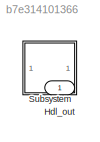
MODEL slx_b7e314101366
KIND model
CONFIG AbsTol = auto
CONFIG EnableMultiTasking = off
CONFIG FixedStep = auto
CONFIG MaxStep = auto
CONFIG MinStep = auto
CONFIG RelTol = 1e-3
CONFIG SampleTimeConstraint = Unconstrained
CONFIG SolverName = VariableStepAuto
CONFIG StartTime = 0.0
CONFIG StopTime = 10.0
BLOCK [Outport] Hdl_out
  OutDataTypeStr = uint8
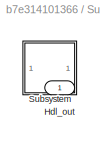
BLOCK [SubSystem] Subsystem
BLOCK [Outport] Subsystem/Hdl_out
  OutDataTypeStr = uint8
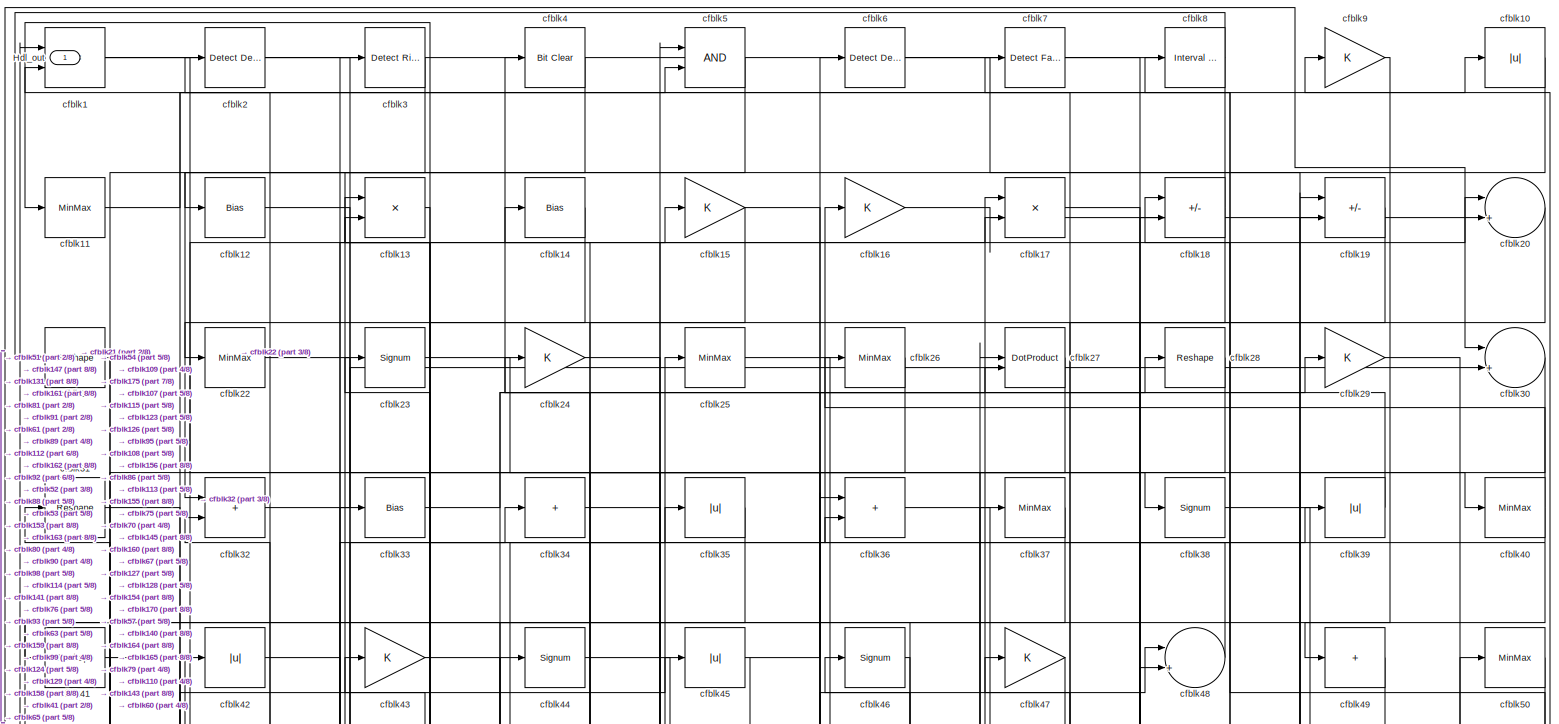
[diagram: Subsystem/Subsystem - part 1/8, full width, top band]
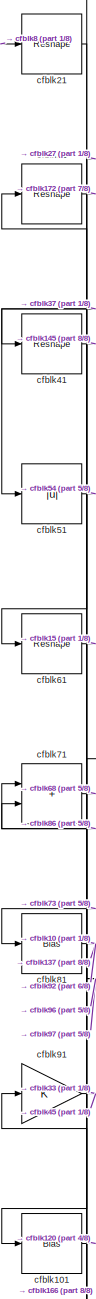
[diagram: Subsystem/Subsystem - part 2/8, middle left region]
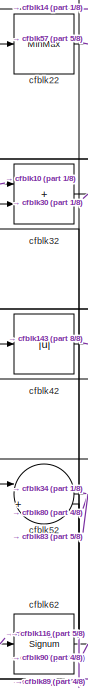
[diagram: Subsystem/Subsystem - part 3/8, top left region]
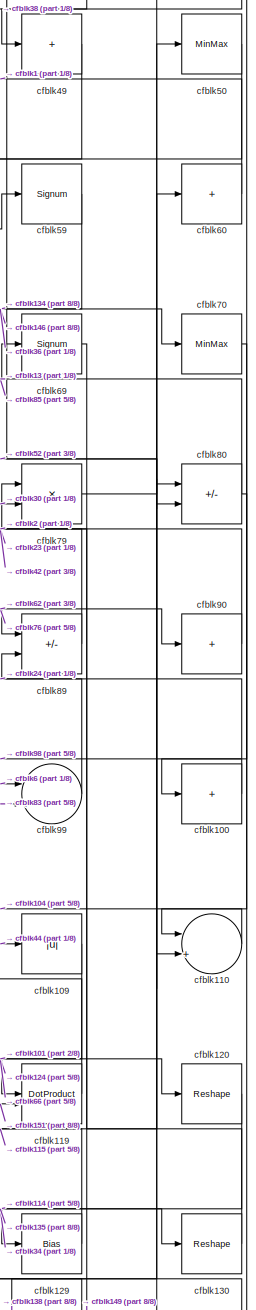
[diagram: Subsystem/Subsystem - part 4/8, middle right region]
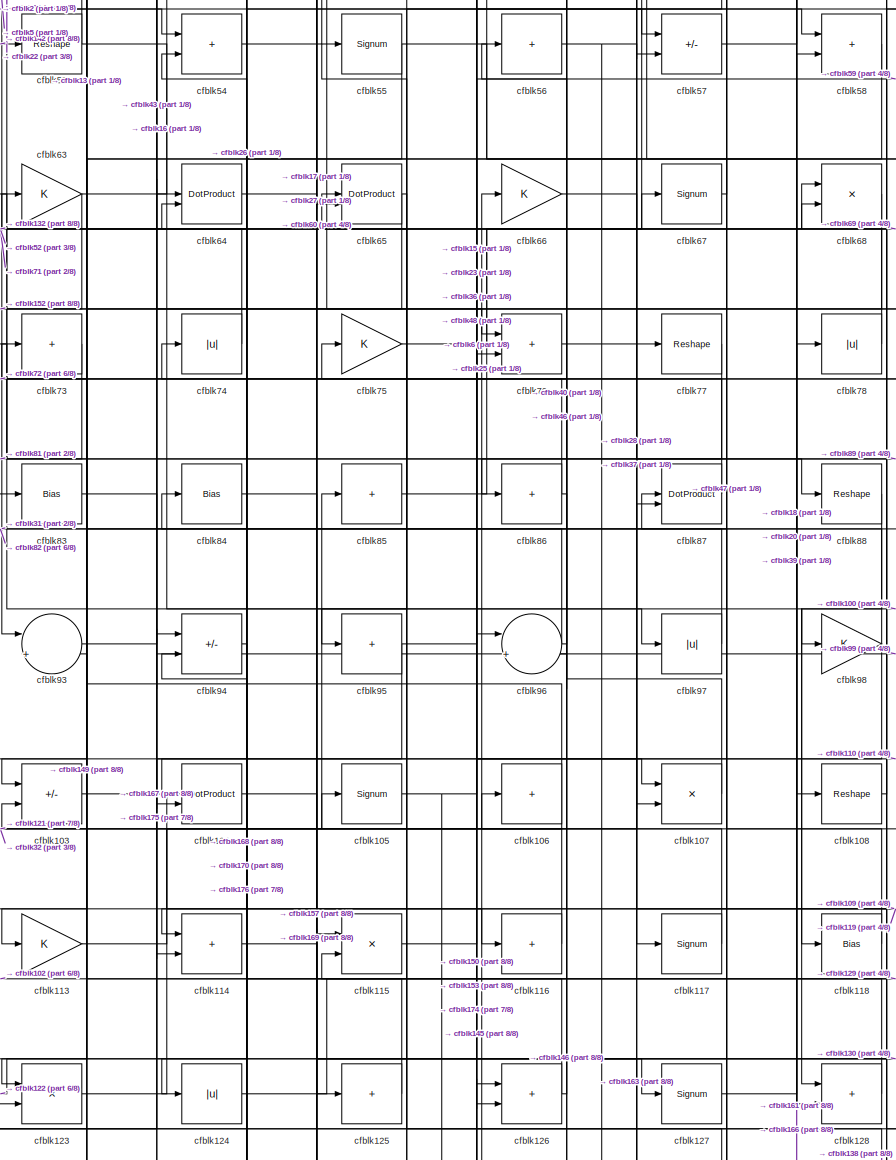
[diagram: Subsystem/Subsystem - part 5/8, central region]
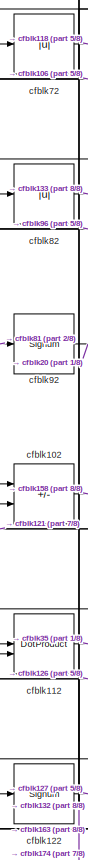
[diagram: Subsystem/Subsystem - part 6/8, middle left region]
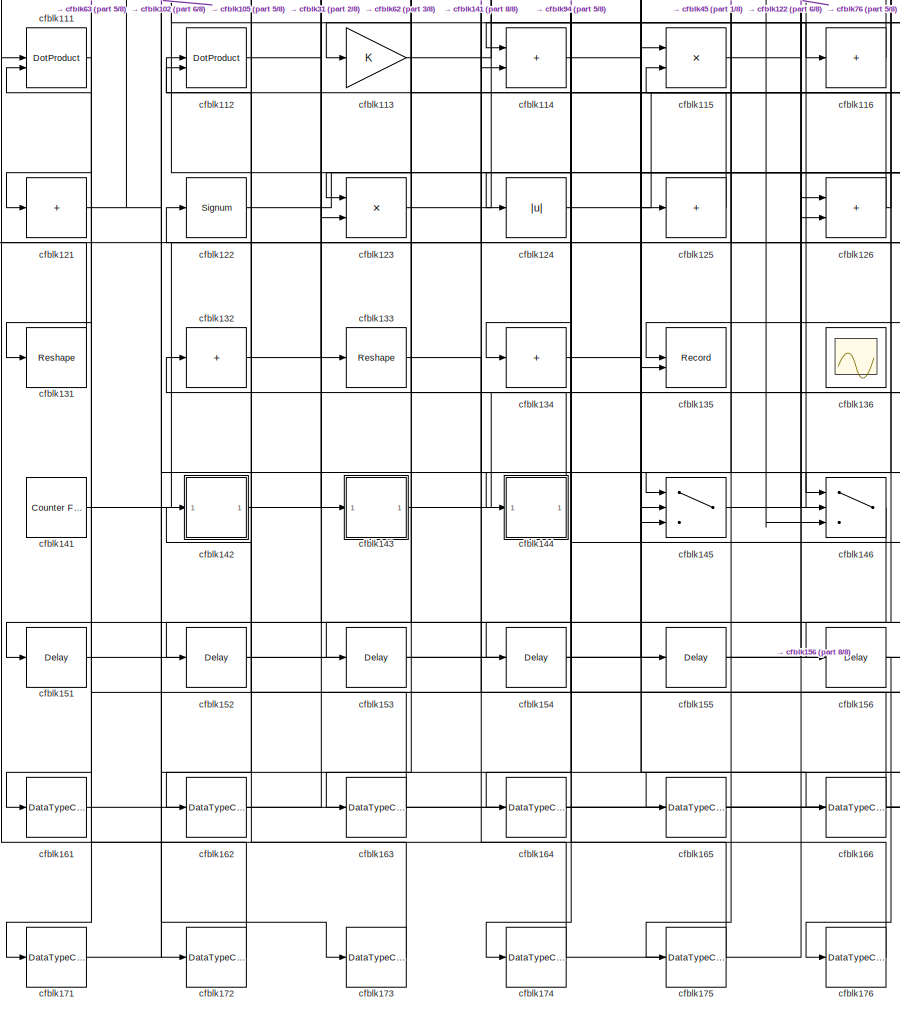
[diagram: Subsystem/Subsystem - part 7/8, bottom left region]
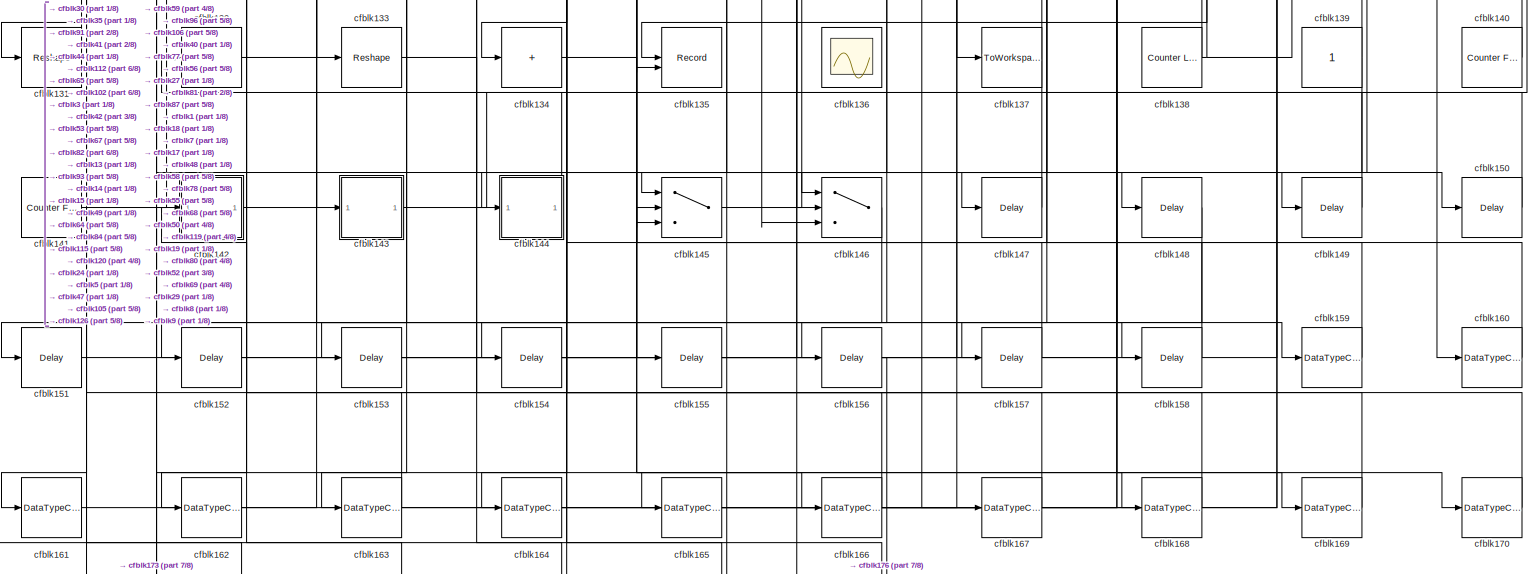
[diagram: Subsystem/Subsystem - part 8/8, full width, bottom band]
BLOCK [SubSystem] Subsystem/Subsystem
BLOCK [Outport] Subsystem/Subsystem/Hdl_out
  OutDataTypeStr = uint8
BLOCK [RelationalOperator] Subsystem/Subsystem/cfblk1
  InputSameDT = off
  Operator = <=
  OutDataTypeStr = boolean
BLOCK [Abs] Subsystem/Subsystem/cfblk10
  OutDataTypeStr = uint8
  SaturateOnIntegerOverflow = off
BLOCK [Sum] Subsystem/Subsystem/cfblk100
  IconShape = rectangular
  Inputs = +
  OutDataTypeStr = uint8
BLOCK [Bias] Subsystem/Subsystem/cfblk101
  Bias = 0.0
  SaturateOnIntegerOverflow = off
BLOCK [Sum] Subsystem/Subsystem/cfblk102
  IconShape = rectangular
  Inputs = +-
  OutDataTypeStr = uint8
BLOCK [Sum] Subsystem/Subsystem/cfblk103
  IconShape = rectangular
  Inputs = +-
  OutDataTypeStr = uint8
BLOCK [DotProduct] Subsystem/Subsystem/cfblk104
  OutDataTypeStr = uint8
BLOCK [Signum] Subsystem/Subsystem/cfblk105
BLOCK [Sum] Subsystem/Subsystem/cfblk106
  IconShape = rectangular
  Inputs = +
  OutDataTypeStr = uint8
BLOCK [Product] Subsystem/Subsystem/cfblk107
  Inputs = */
  OutDataTypeStr = uint8
  RndMeth = Zero
  SaturateOnIntegerOverflow = on
BLOCK [Reshape] Subsystem/Subsystem/cfblk108
BLOCK [Abs] Subsystem/Subsystem/cfblk109
  OutDataTypeStr = uint8
  SaturateOnIntegerOverflow = off
BLOCK [MinMax] Subsystem/Subsystem/cfblk11
  OutDataTypeStr = uint8
BLOCK [Sum] Subsystem/Subsystem/cfblk110
  Inputs = |++
  OutDataTypeStr = uint8
BLOCK [DotProduct] Subsystem/Subsystem/cfblk111
  OutDataTypeStr = uint8
BLOCK [DotProduct] Subsystem/Subsystem/cfblk112
  OutDataTypeStr = uint8
BLOCK [Gain] Subsystem/Subsystem/cfblk113
  OutDataTypeStr = uint8
BLOCK [Sum] Subsystem/Subsystem/cfblk114
  IconShape = rectangular
  OutDataTypeStr = uint8
BLOCK [Product] Subsystem/Subsystem/cfblk115
  Inputs = */
  OutDataTypeStr = uint8
  RndMeth = Zero
  SaturateOnIntegerOverflow = on
BLOCK [Sum] Subsystem/Subsystem/cfblk116
  IconShape = rectangular
  Inputs = +
  OutDataTypeStr = uint8
BLOCK [Signum] Subsystem/Subsystem/cfblk117
BLOCK [Bias] Subsystem/Subsystem/cfblk118
  Bias = 0.0
  SaturateOnIntegerOverflow = off
BLOCK [DotProduct] Subsystem/Subsystem/cfblk119
  OutDataTypeStr = uint8
BLOCK [Bias] Subsystem/Subsystem/cfblk12
  Bias = 0.0
  SaturateOnIntegerOverflow = off
BLOCK [Reshape] Subsystem/Subsystem/cfblk120
BLOCK [Sum] Subsystem/Subsystem/cfblk121
  IconShape = rectangular
  Inputs = +
  OutDataTypeStr = uint8
BLOCK [Signum] Subsystem/Subsystem/cfblk122
BLOCK [Product] Subsystem/Subsystem/cfblk123
  Inputs = */
  OutDataTypeStr = uint8
  RndMeth = Zero
  SaturateOnIntegerOverflow = on
BLOCK [Abs] Subsystem/Subsystem/cfblk124
  OutDataTypeStr = uint8
  SaturateOnIntegerOverflow = off
BLOCK [Sum] Subsystem/Subsystem/cfblk125
  IconShape = rectangular
  Inputs = +
  OutDataTypeStr = uint8
BLOCK [Sum] Subsystem/Subsystem/cfblk126
  IconShape = rectangular
  OutDataTypeStr = uint8
BLOCK [Signum] Subsystem/Subsystem/cfblk127
BLOCK [Sum] Subsystem/Subsystem/cfblk128
  IconShape = rectangular
  OutDataTypeStr = uint8
BLOCK [Bias] Subsystem/Subsystem/cfblk129
  Bias = 0.0
  SaturateOnIntegerOverflow = off
BLOCK [Product] Subsystem/Subsystem/cfblk13
  Inputs = */
  OutDataTypeStr = uint8
  RndMeth = Zero
  SaturateOnIntegerOverflow = on
BLOCK [Reshape] Subsystem/Subsystem/cfblk130
BLOCK [Reshape] Subsystem/Subsystem/cfblk131
BLOCK [Sum] Subsystem/Subsystem/cfblk132
  IconShape = rectangular
  Inputs = +
  OutDataTypeStr = uint8
BLOCK [Reshape] Subsystem/Subsystem/cfblk133
BLOCK [Sum] Subsystem/Subsystem/cfblk134
  IconShape = rectangular
  Inputs = +
  OutDataTypeStr = uint8
BLOCK [Record] Subsystem/Subsystem/cfblk135
  CompatibilityTag = XY
  FileSettingsInternal = {"entries":[{"content":{"excelSettings":{"content":{},"type":"Streamout.ExcelSettings"}},"type":"Streamout.FileSettingStorage","uuid":""}],"packageUris":["http:\/\/schema.mathworks.com\/mf0\/streamout_blocks\/R2020a"],"version":"1.0"}
  Layout = [1 1]
  SignalsInternal = {"entries":[{"content":{"signals":[{"content":{"blockPath":[],"dimensions":[1],"domain":"","lineColor":"#a2142f","plots":[1],"port":1,"signalID":14830,"signalName":"cfblk50"},"type":"RecordBlkView.Signal","uuid":""},{"content":{"blockPath":[],"dimensions":[1],"domain":"","lineColor":"#139fff","plots":[1],"port":2,"signalID":14833,"signalName":"cfblk120"},"type":"RecordBlkView.Signal","uuid":""}]},...<+143ch>
  VisualizationBindings = {"xyplotplugin":{"info":[{"series":[{"bindingParametersList":[{"parameter":"X-Axis","signalID":14830,"signalName":"cfblk50"},{"parameter":"Y-Axis","signalID":14833,"signalName":"cfblk120"}],"seriesID":8380}],"subplotID":1}]}}
  st = -1
BLOCK [Scope] Subsystem/Subsystem/cfblk136
  Floating = on
  NumInputPorts = 1
  ScopeSpecificationString = Simulink.scopes.TimeScopeBlockCfg('CurrentConfiguration', extmgr.ConfigurationSet(extmgr.Configuration('Core','General UI',true,'FigureColor',[0.156862745098039 0.156862745098039 0.156862745098039]),extmgr.Configuration('Core','Source UI',true),extmgr.Configuration('Sources','WiredSimulink',true,'DataLoggingSaveFormat','StructureWithTime','DataLoggingLimitDataPoints',true,'DataLoggingDecimation','...<+2674ch>
BLOCK [ToWorkspace] Subsystem/Subsystem/cfblk137
  MaxDataPoints = inf
  SampleTime = -1
  SaveFormat = Timeseries
  VariableName = simout
BLOCK [Reference] Subsystem/Subsystem/cfblk138  REF=hdlsllib/Sources/Counter
Limited
  SourceBlock = hdlsllib/Sources/Counter\nLimited
  SourceType = Counter Limited
BLOCK [Constant] Subsystem/Subsystem/cfblk139
  OutDataTypeStr = uint8
  SampleTime = -1
BLOCK [Bias] Subsystem/Subsystem/cfblk14
  Bias = 0.0
  SaturateOnIntegerOverflow = off
BLOCK [Reference] Subsystem/Subsystem/cfblk140  REF=hdlsllib/Sources/Counter
Free-Running
  SourceBlock = hdlsllib/Sources/Counter\nFree-Running
  SourceType = Counter Free-Running
BLOCK [Reference] Subsystem/Subsystem/cfblk141  REF=hdlsllib/Sources/Counter
Free-Running
  SourceBlock = hdlsllib/Sources/Counter\nFree-Running
  SourceType = Counter Free-Running
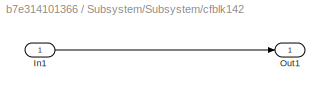
BLOCK [SubSystem] Subsystem/Subsystem/cfblk142
  LibrarySourceBlock = hdlsllib/Ports &\nSubsystems/Subsystem
BLOCK [Inport] Subsystem/Subsystem/cfblk142/In1
BLOCK [Outport] Subsystem/Subsystem/cfblk142/Out1
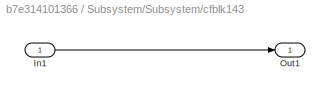
BLOCK [SubSystem] Subsystem/Subsystem/cfblk143
  LibrarySourceBlock = hdlsllib/Ports &\nSubsystems/Subsystem
BLOCK [Inport] Subsystem/Subsystem/cfblk143/In1
BLOCK [Outport] Subsystem/Subsystem/cfblk143/Out1
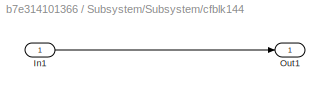
BLOCK [SubSystem] Subsystem/Subsystem/cfblk144
  LibrarySourceBlock = hdlsllib/Ports &\nSubsystems/Subsystem
BLOCK [Inport] Subsystem/Subsystem/cfblk144/In1
BLOCK [Outport] Subsystem/Subsystem/cfblk144/Out1
BLOCK [Switch] Subsystem/Subsystem/cfblk145
  InputSameDT = off
  OutDataTypeStr = uint8
  SaturateOnIntegerOverflow = off
BLOCK [Switch] Subsystem/Subsystem/cfblk146
  InputSameDT = off
  OutDataTypeStr = uint8
  SaturateOnIntegerOverflow = off
BLOCK [Delay] Subsystem/Subsystem/cfblk147
  InputPortMap = u0
  SampleTime = 1
BLOCK [Delay] Subsystem/Subsystem/cfblk148
  InputPortMap = u0
  SampleTime = 1
BLOCK [Delay] Subsystem/Subsystem/cfblk149
  InputPortMap = u0
  SampleTime = 1
BLOCK [Gain] Subsystem/Subsystem/cfblk15
  OutDataTypeStr = uint8
BLOCK [Delay] Subsystem/Subsystem/cfblk150
  InputPortMap = u0
  SampleTime = 1
BLOCK [Delay] Subsystem/Subsystem/cfblk151
  InputPortMap = u0
  SampleTime = 1
BLOCK [Delay] Subsystem/Subsystem/cfblk152
  InputPortMap = u0
  SampleTime = 1
BLOCK [Delay] Subsystem/Subsystem/cfblk153
  InputPortMap = u0
  SampleTime = 1
BLOCK [Delay] Subsystem/Subsystem/cfblk154
  InputPortMap = u0
  SampleTime = 1
BLOCK [Delay] Subsystem/Subsystem/cfblk155
  InputPortMap = u0
  SampleTime = 1
BLOCK [Delay] Subsystem/Subsystem/cfblk156
  InputPortMap = u0
  SampleTime = 1
BLOCK [Delay] Subsystem/Subsystem/cfblk157
  InputPortMap = u0
  SampleTime = 1
BLOCK [Delay] Subsystem/Subsystem/cfblk158
  InputPortMap = u0
  SampleTime = 1
BLOCK [DataTypeConversion] Subsystem/Subsystem/cfblk159
  OutDataTypeStr = uint8
  RndMeth = Floor
  SaturateOnIntegerOverflow = off
BLOCK [Gain] Subsystem/Subsystem/cfblk16
  OutDataTypeStr = uint8
BLOCK [DataTypeConversion] Subsystem/Subsystem/cfblk160
  OutDataTypeStr = uint8
  RndMeth = Floor
  SaturateOnIntegerOverflow = off
BLOCK [DataTypeConversion] Subsystem/Subsystem/cfblk161
  OutDataTypeStr = uint8
  RndMeth = Floor
  SaturateOnIntegerOverflow = off
BLOCK [DataTypeConversion] Subsystem/Subsystem/cfblk162
  OutDataTypeStr = uint8
  RndMeth = Floor
  SaturateOnIntegerOverflow = off
BLOCK [DataTypeConversion] Subsystem/Subsystem/cfblk163
  OutDataTypeStr = uint8
  RndMeth = Floor
  SaturateOnIntegerOverflow = off
BLOCK [DataTypeConversion] Subsystem/Subsystem/cfblk164
  OutDataTypeStr = uint8
  RndMeth = Floor
  SaturateOnIntegerOverflow = off
BLOCK [DataTypeConversion] Subsystem/Subsystem/cfblk165
  OutDataTypeStr = uint8
  RndMeth = Floor
  SaturateOnIntegerOverflow = off
BLOCK [DataTypeConversion] Subsystem/Subsystem/cfblk166
  OutDataTypeStr = uint8
  RndMeth = Floor
  SaturateOnIntegerOverflow = off
BLOCK [DataTypeConversion] Subsystem/Subsystem/cfblk167
  OutDataTypeStr = uint8
  RndMeth = Floor
  SaturateOnIntegerOverflow = off
BLOCK [DataTypeConversion] Subsystem/Subsystem/cfblk168
  OutDataTypeStr = uint8
  RndMeth = Floor
  SaturateOnIntegerOverflow = off
BLOCK [DataTypeConversion] Subsystem/Subsystem/cfblk169
  OutDataTypeStr = uint8
  RndMeth = Floor
  SaturateOnIntegerOverflow = off
BLOCK [Product] Subsystem/Subsystem/cfblk17
  Inputs = */
  OutDataTypeStr = uint8
  RndMeth = Zero
  SaturateOnIntegerOverflow = on
BLOCK [DataTypeConversion] Subsystem/Subsystem/cfblk170
  OutDataTypeStr = uint8
  RndMeth = Floor
  SaturateOnIntegerOverflow = off
BLOCK [DataTypeConversion] Subsystem/Subsystem/cfblk171
  OutDataTypeStr = uint8
  RndMeth = Floor
  SaturateOnIntegerOverflow = off
BLOCK [DataTypeConversion] Subsystem/Subsystem/cfblk172
  OutDataTypeStr = uint8
  RndMeth = Floor
  SaturateOnIntegerOverflow = off
BLOCK [DataTypeConversion] Subsystem/Subsystem/cfblk173
  OutDataTypeStr = uint8
  RndMeth = Floor
  SaturateOnIntegerOverflow = off
BLOCK [DataTypeConversion] Subsystem/Subsystem/cfblk174
  OutDataTypeStr = uint8
  RndMeth = Floor
  SaturateOnIntegerOverflow = off
BLOCK [DataTypeConversion] Subsystem/Subsystem/cfblk175
  OutDataTypeStr = uint8
  RndMeth = Floor
  SaturateOnIntegerOverflow = off
BLOCK [DataTypeConversion] Subsystem/Subsystem/cfblk176
  OutDataTypeStr = uint8
  RndMeth = Floor
  SaturateOnIntegerOverflow = off
BLOCK [Sum] Subsystem/Subsystem/cfblk18
  IconShape = rectangular
  Inputs = +-
  OutDataTypeStr = uint8
BLOCK [Sum] Subsystem/Subsystem/cfblk19
  IconShape = rectangular
  Inputs = +-
  OutDataTypeStr = uint8
BLOCK [Reference] Subsystem/Subsystem/cfblk2  REF=simulink/Logic and Bit
Operations/Detect
Decrease
  LibrarySourceBlock = hdlsllib/Logic and Bit\nOperations/Detect\nDecrease
  SourceBlock = simulink/Logic and Bit\nOperations/Detect\nDecrease
  SourceType = Detect Decrease
BLOCK [Sum] Subsystem/Subsystem/cfblk20
  Inputs = |++
  OutDataTypeStr = uint8
BLOCK [Reshape] Subsystem/Subsystem/cfblk21
BLOCK [MinMax] Subsystem/Subsystem/cfblk22
  OutDataTypeStr = uint8
BLOCK [Signum] Subsystem/Subsystem/cfblk23
BLOCK [Gain] Subsystem/Subsystem/cfblk24
  OutDataTypeStr = uint8
BLOCK [MinMax] Subsystem/Subsystem/cfblk25
  OutDataTypeStr = uint8
BLOCK [MinMax] Subsystem/Subsystem/cfblk26
  OutDataTypeStr = uint8
BLOCK [DotProduct] Subsystem/Subsystem/cfblk27
  OutDataTypeStr = uint8
BLOCK [Reshape] Subsystem/Subsystem/cfblk28
BLOCK [Gain] Subsystem/Subsystem/cfblk29
  OutDataTypeStr = uint8
BLOCK [Reference] Subsystem/Subsystem/cfblk3  REF=hdlsllib/Logic and Bit
Operations/Detect Rise
Positive
  SourceBlock = hdlsllib/Logic and Bit\nOperations/Detect Rise\nPositive
  SourceType = Detect Rise Positive
BLOCK [Sum] Subsystem/Subsystem/cfblk30
  Inputs = |++
  OutDataTypeStr = uint8
BLOCK [Reshape] Subsystem/Subsystem/cfblk31
BLOCK [Sum] Subsystem/Subsystem/cfblk32
  IconShape = rectangular
  OutDataTypeStr = uint8
BLOCK [Bias] Subsystem/Subsystem/cfblk33
  Bias = 0.0
  SaturateOnIntegerOverflow = off
BLOCK [Sum] Subsystem/Subsystem/cfblk34
  IconShape = rectangular
  Inputs = +
  OutDataTypeStr = uint8
BLOCK [Abs] Subsystem/Subsystem/cfblk35
  OutDataTypeStr = uint8
  SaturateOnIntegerOverflow = off
BLOCK [Sum] Subsystem/Subsystem/cfblk36
  IconShape = rectangular
  OutDataTypeStr = uint8
BLOCK [MinMax] Subsystem/Subsystem/cfblk37
  OutDataTypeStr = uint8
BLOCK [Signum] Subsystem/Subsystem/cfblk38
BLOCK [Abs] Subsystem/Subsystem/cfblk39
  OutDataTypeStr = uint8
  SaturateOnIntegerOverflow = off
BLOCK [Reference] Subsystem/Subsystem/cfblk4  REF=simulink/Logic and Bit
Operations/Bit Clear
  LibrarySourceBlock = hdlsllib/Logic and Bit\nOperations/Bit Clear
  SourceBlock = simulink/Logic and Bit\nOperations/Bit Clear
  SourceType = Bit Clear
BLOCK [MinMax] Subsystem/Subsystem/cfblk40
  OutDataTypeStr = uint8
BLOCK [Reshape] Subsystem/Subsystem/cfblk41
BLOCK [Abs] Subsystem/Subsystem/cfblk42
  OutDataTypeStr = uint8
  SaturateOnIntegerOverflow = off
BLOCK [Gain] Subsystem/Subsystem/cfblk43
  OutDataTypeStr = uint8
BLOCK [Signum] Subsystem/Subsystem/cfblk44
BLOCK [Abs] Subsystem/Subsystem/cfblk45
  OutDataTypeStr = uint8
  SaturateOnIntegerOverflow = off
BLOCK [Signum] Subsystem/Subsystem/cfblk46
BLOCK [Gain] Subsystem/Subsystem/cfblk47
  OutDataTypeStr = uint8
BLOCK [Sum] Subsystem/Subsystem/cfblk48
  Inputs = |++
  OutDataTypeStr = uint8
BLOCK [Sum] Subsystem/Subsystem/cfblk49
  IconShape = rectangular
  Inputs = +
  OutDataTypeStr = uint8
BLOCK [Logic] Subsystem/Subsystem/cfblk5
  AllPortsSameDT = off
  OutDataTypeStr = boolean
BLOCK [MinMax] Subsystem/Subsystem/cfblk50
  OutDataTypeStr = uint8
BLOCK [Abs] Subsystem/Subsystem/cfblk51
  OutDataTypeStr = uint8
  SaturateOnIntegerOverflow = off
BLOCK [Sum] Subsystem/Subsystem/cfblk52
  Inputs = |++
  OutDataTypeStr = uint8
BLOCK [Reshape] Subsystem/Subsystem/cfblk53
BLOCK [Sum] Subsystem/Subsystem/cfblk54
  IconShape = rectangular
  OutDataTypeStr = uint8
BLOCK [Signum] Subsystem/Subsystem/cfblk55
BLOCK [Sum] Subsystem/Subsystem/cfblk56
  IconShape = rectangular
  Inputs = +
  OutDataTypeStr = uint8
BLOCK [Sum] Subsystem/Subsystem/cfblk57
  IconShape = rectangular
  Inputs = +-
  OutDataTypeStr = uint8
BLOCK [Sum] Subsystem/Subsystem/cfblk58
  IconShape = rectangular
  OutDataTypeStr = uint8
BLOCK [Signum] Subsystem/Subsystem/cfblk59
BLOCK [Reference] Subsystem/Subsystem/cfblk6  REF=simulink/Logic and Bit
Operations/Detect
Decrease
  LibrarySourceBlock = hdlsllib/Logic and Bit\nOperations/Detect\nDecrease
  SourceBlock = simulink/Logic and Bit\nOperations/Detect\nDecrease
  SourceType = Detect Decrease
BLOCK [Sum] Subsystem/Subsystem/cfblk60
  IconShape = rectangular
  Inputs = +
  OutDataTypeStr = uint8
BLOCK [Reshape] Subsystem/Subsystem/cfblk61
BLOCK [Signum] Subsystem/Subsystem/cfblk62
BLOCK [Gain] Subsystem/Subsystem/cfblk63
  OutDataTypeStr = uint8
BLOCK [DotProduct] Subsystem/Subsystem/cfblk64
  OutDataTypeStr = uint8
BLOCK [DotProduct] Subsystem/Subsystem/cfblk65
  OutDataTypeStr = uint8
BLOCK [Gain] Subsystem/Subsystem/cfblk66
  OutDataTypeStr = uint8
BLOCK [Signum] Subsystem/Subsystem/cfblk67
BLOCK [Product] Subsystem/Subsystem/cfblk68
  Inputs = */
  OutDataTypeStr = uint8
  RndMeth = Zero
  SaturateOnIntegerOverflow = on
BLOCK [Signum] Subsystem/Subsystem/cfblk69
BLOCK [Reference] Subsystem/Subsystem/cfblk7  REF=hdlsllib/Logic and Bit
Operations/Detect Fall
Nonpositive
  SourceBlock = hdlsllib/Logic and Bit\nOperations/Detect Fall\nNonpositive
  SourceType = Detect Fall Nonpositive
BLOCK [MinMax] Subsystem/Subsystem/cfblk70
  OutDataTypeStr = uint8
BLOCK [Sum] Subsystem/Subsystem/cfblk71
  IconShape = rectangular
  OutDataTypeStr = uint8
BLOCK [Abs] Subsystem/Subsystem/cfblk72
  OutDataTypeStr = uint8
  SaturateOnIntegerOverflow = off
BLOCK [Sum] Subsystem/Subsystem/cfblk73
  IconShape = rectangular
  Inputs = +
  OutDataTypeStr = uint8
BLOCK [Abs] Subsystem/Subsystem/cfblk74
  OutDataTypeStr = uint8
  SaturateOnIntegerOverflow = off
BLOCK [Gain] Subsystem/Subsystem/cfblk75
  OutDataTypeStr = uint8
BLOCK [Sum] Subsystem/Subsystem/cfblk76
  IconShape = rectangular
  OutDataTypeStr = uint8
BLOCK [Reshape] Subsystem/Subsystem/cfblk77
BLOCK [Abs] Subsystem/Subsystem/cfblk78
  OutDataTypeStr = uint8
  SaturateOnIntegerOverflow = off
BLOCK [Product] Subsystem/Subsystem/cfblk79
  Inputs = */
  OutDataTypeStr = uint8
  RndMeth = Zero
  SaturateOnIntegerOverflow = on
BLOCK [Reference] Subsystem/Subsystem/cfblk8  REF=hdlsllib/Logic and Bit
Operations/Interval Test
  SourceBlock = hdlsllib/Logic and Bit\nOperations/Interval Test
  SourceType = Interval Test
BLOCK [Sum] Subsystem/Subsystem/cfblk80
  IconShape = rectangular
  Inputs = +-
  OutDataTypeStr = uint8
BLOCK [Bias] Subsystem/Subsystem/cfblk81
  Bias = 0.0
  SaturateOnIntegerOverflow = off
BLOCK [Abs] Subsystem/Subsystem/cfblk82
  OutDataTypeStr = uint8
  SaturateOnIntegerOverflow = off
BLOCK [Bias] Subsystem/Subsystem/cfblk83
  Bias = 0.0
  SaturateOnIntegerOverflow = off
BLOCK [Bias] Subsystem/Subsystem/cfblk84
  Bias = 0.0
  SaturateOnIntegerOverflow = off
BLOCK [Sum] Subsystem/Subsystem/cfblk85
  IconShape = rectangular
  Inputs = +
  OutDataTypeStr = uint8
BLOCK [Sum] Subsystem/Subsystem/cfblk86
  IconShape = rectangular
  Inputs = +
  OutDataTypeStr = uint8
BLOCK [DotProduct] Subsystem/Subsystem/cfblk87
  OutDataTypeStr = uint8
BLOCK [Reshape] Subsystem/Subsystem/cfblk88
BLOCK [Sum] Subsystem/Subsystem/cfblk89
  IconShape = rectangular
  Inputs = +-
  OutDataTypeStr = uint8
BLOCK [Gain] Subsystem/Subsystem/cfblk9
  OutDataTypeStr = uint8
BLOCK [Sum] Subsystem/Subsystem/cfblk90
  IconShape = rectangular
  Inputs = +
  OutDataTypeStr = uint8
BLOCK [Gain] Subsystem/Subsystem/cfblk91
  OutDataTypeStr = uint8
BLOCK [Signum] Subsystem/Subsystem/cfblk92
BLOCK [Sum] Subsystem/Subsystem/cfblk93
  Inputs = |++
  OutDataTypeStr = uint8
BLOCK [Sum] Subsystem/Subsystem/cfblk94
  IconShape = rectangular
  Inputs = +-
  OutDataTypeStr = uint8
BLOCK [Sum] Subsystem/Subsystem/cfblk95
  IconShape = rectangular
  Inputs = +
  OutDataTypeStr = uint8
BLOCK [Sum] Subsystem/Subsystem/cfblk96
  Inputs = |++
  OutDataTypeStr = uint8
BLOCK [Abs] Subsystem/Subsystem/cfblk97
  OutDataTypeStr = uint8
  SaturateOnIntegerOverflow = off
BLOCK [Gain] Subsystem/Subsystem/cfblk98
  OutDataTypeStr = uint8
BLOCK [Sum] Subsystem/Subsystem/cfblk99
  Inputs = |++
  OutDataTypeStr = uint8
NET Subsystem/Subsystem/cfblk100:1 -> Subsystem/Subsystem/cfblk89:2, Subsystem/Subsystem/cfblk98:1
LINE Subsystem/Subsystem/cfblk101:1 -> Subsystem/Subsystem/cfblk120:1
LINE Subsystem/Subsystem/cfblk102:1 -> Subsystem/Subsystem/cfblk158:1
LINE Subsystem/Subsystem/cfblk103:1 -> Subsystem/Subsystem/cfblk116:1
LINE Subsystem/Subsystem/cfblk104:1 -> Subsystem/Subsystem/cfblk125:1
NET Subsystem/Subsystem/cfblk105:1 -> Subsystem/Subsystem/cfblk107:1, Subsystem/Subsystem/cfblk146:3
NET Subsystem/Subsystem/cfblk106:1 -> Subsystem/Subsystem/cfblk103:2, Subsystem/Subsystem/cfblk72:1
LINE Subsystem/Subsystem/cfblk107:1 -> Subsystem/Subsystem/cfblk75:1
LINE Subsystem/Subsystem/cfblk108:1 -> Subsystem/Subsystem/cfblk18:1
LINE Subsystem/Subsystem/cfblk109:1 -> Subsystem/Subsystem/cfblk124:1
LINE Subsystem/Subsystem/cfblk10:1 -> Subsystem/Subsystem/cfblk32:1
LINE Subsystem/Subsystem/cfblk110:1 -> Subsystem/Subsystem/cfblk104:1
LINE Subsystem/Subsystem/cfblk111:1 -> Subsystem/Subsystem/cfblk171:1
LINE Subsystem/Subsystem/cfblk112:1 -> Subsystem/Subsystem/cfblk35:1
LINE Subsystem/Subsystem/cfblk113:1 -> Subsystem/Subsystem/cfblk37:1
LINE Subsystem/Subsystem/cfblk114:1 -> Subsystem/Subsystem/cfblk130:1
LINE Subsystem/Subsystem/cfblk115:1 -> Subsystem/Subsystem/cfblk48:1
LINE Subsystem/Subsystem/cfblk116:1 -> Subsystem/Subsystem/cfblk32:2
LINE Subsystem/Subsystem/cfblk117:1 -> Subsystem/Subsystem/cfblk66:1
LINE Subsystem/Subsystem/cfblk118:1 -> Subsystem/Subsystem/cfblk87:1
LINE Subsystem/Subsystem/cfblk119:1 -> Subsystem/Subsystem/cfblk85:1
LINE Subsystem/Subsystem/cfblk11:1 -> Subsystem/Subsystem/cfblk5:2
LINE Subsystem/Subsystem/cfblk120:1 -> Subsystem/Subsystem/cfblk135:2
NET Subsystem/Subsystem/cfblk121:1 -> Subsystem/Subsystem/cfblk102:2, Subsystem/Subsystem/cfblk105:1
LINE Subsystem/Subsystem/cfblk122:1 -> Subsystem/Subsystem/cfblk127:1
LINE Subsystem/Subsystem/cfblk123:1 -> Subsystem/Subsystem/cfblk6:1
NET Subsystem/Subsystem/cfblk124:1 -> Subsystem/Subsystem/cfblk17:2, Subsystem/Subsystem/cfblk60:1
LINE Subsystem/Subsystem/cfblk125:1 -> Subsystem/Subsystem/cfblk73:1
NET Subsystem/Subsystem/cfblk126:1 -> Subsystem/Subsystem/cfblk102:1, Subsystem/Subsystem/cfblk46:1
LINE Subsystem/Subsystem/cfblk127:1 -> Subsystem/Subsystem/cfblk39:1
LINE Subsystem/Subsystem/cfblk128:1 -> Subsystem/Subsystem/cfblk54:2
LINE Subsystem/Subsystem/cfblk129:1 -> Subsystem/Subsystem/cfblk115:2
LINE Subsystem/Subsystem/cfblk12:1 -> Subsystem/Subsystem/cfblk40:1
LINE Subsystem/Subsystem/cfblk130:1 -> Subsystem/Subsystem/cfblk79:1
LINE Subsystem/Subsystem/cfblk131:1 -> Subsystem/Subsystem/cfblk30:1
NET Subsystem/Subsystem/cfblk132:1 -> Subsystem/Subsystem/cfblk112:1, Subsystem/Subsystem/cfblk67:1
LINE Subsystem/Subsystem/cfblk133:1 -> Subsystem/Subsystem/cfblk148:1
LINE Subsystem/Subsystem/cfblk134:1 -> Subsystem/Subsystem/cfblk150:1
NET Subsystem/Subsystem/cfblk138:1 -> Subsystem/Subsystem/cfblk55:1, Subsystem/Subsystem/cfblk68:1, Subsystem/Subsystem/cfblk80:1
NET Subsystem/Subsystem/cfblk139:1 -> Subsystem/Subsystem/cfblk144:1, Subsystem/Subsystem/cfblk52:2
LINE Subsystem/Subsystem/cfblk13:1 -> Subsystem/Subsystem/cfblk153:1
LINE Subsystem/Subsystem/cfblk140:1 -> Subsystem/Subsystem/cfblk8:1
NET Subsystem/Subsystem/cfblk141:1 -> Subsystem/Subsystem/cfblk165:1, Subsystem/Subsystem/cfblk168:1, Subsystem/Subsystem/cfblk173:1, Subsystem/Subsystem/cfblk44:1
LINE Subsystem/Subsystem/cfblk142/In1:1 -> Subsystem/Subsystem/cfblk142/Out1:1
LINE Subsystem/Subsystem/cfblk142:1 -> Subsystem/Subsystem/cfblk53:1
LINE Subsystem/Subsystem/cfblk143/In1:1 -> Subsystem/Subsystem/cfblk143/Out1:1
LINE Subsystem/Subsystem/cfblk143:1 -> Subsystem/Subsystem/cfblk9:1
LINE Subsystem/Subsystem/cfblk144/In1:1 -> Subsystem/Subsystem/cfblk144/Out1:1
LINE Subsystem/Subsystem/cfblk144:1 -> Subsystem/Subsystem/cfblk132:1
LINE Subsystem/Subsystem/cfblk145:1 -> Subsystem/Subsystem/cfblk106:1
LINE Subsystem/Subsystem/cfblk146:1 -> Subsystem/Subsystem/cfblk151:1
LINE Subsystem/Subsystem/cfblk147:1 -> Subsystem/Subsystem/cfblk1:1
LINE Subsystem/Subsystem/cfblk148:1 -> Subsystem/Subsystem/cfblk162:1
LINE Subsystem/Subsystem/cfblk149:1 -> Subsystem/Subsystem/cfblk93:2
LINE Subsystem/Subsystem/cfblk14:1 -> Subsystem/Subsystem/cfblk22:1
LINE Subsystem/Subsystem/cfblk150:1 -> Subsystem/Subsystem/cfblk126:1
LINE Subsystem/Subsystem/cfblk151:1 -> Subsystem/Subsystem/cfblk119:2
LINE Subsystem/Subsystem/cfblk152:1 -> Subsystem/Subsystem/cfblk145:2
LINE Subsystem/Subsystem/cfblk153:1 -> Subsystem/Subsystem/cfblk96:1
LINE Subsystem/Subsystem/cfblk154:1 -> Subsystem/Subsystem/cfblk48:2
LINE Subsystem/Subsystem/cfblk155:1 -> Subsystem/Subsystem/cfblk27:1
LINE Subsystem/Subsystem/cfblk156:1 -> Subsystem/Subsystem/cfblk176:1
LINE Subsystem/Subsystem/cfblk157:1 -> Subsystem/Subsystem/cfblk115:1
LINE Subsystem/Subsystem/cfblk158:1 -> Subsystem/Subsystem/cfblk5:1
LINE Subsystem/Subsystem/cfblk159:1 -> Subsystem/Subsystem/cfblk14:1
NET Subsystem/Subsystem/cfblk15:1 -> Subsystem/Subsystem/cfblk107:2, Subsystem/Subsystem/cfblk164:1
LINE Subsystem/Subsystem/cfblk160:1 -> Subsystem/Subsystem/cfblk7:1
LINE Subsystem/Subsystem/cfblk161:1 -> Subsystem/Subsystem/cfblk78:1
LINE Subsystem/Subsystem/cfblk162:1 -> Subsystem/Subsystem/cfblk3:1
NET Subsystem/Subsystem/cfblk163:1 -> Subsystem/Subsystem/cfblk112:2, Subsystem/Subsystem/cfblk87:2
LINE Subsystem/Subsystem/cfblk164:1 -> Subsystem/Subsystem/cfblk19:1
LINE Subsystem/Subsystem/cfblk165:1 -> Subsystem/Subsystem/cfblk19:2
NET Subsystem/Subsystem/cfblk166:1 -> Subsystem/Subsystem/cfblk58:2, Subsystem/Subsystem/cfblk91:1
LINE Subsystem/Subsystem/cfblk167:1 -> Subsystem/Subsystem/cfblk64:1
LINE Subsystem/Subsystem/cfblk168:1 -> Subsystem/Subsystem/cfblk64:2
LINE Subsystem/Subsystem/cfblk169:1 -> Subsystem/Subsystem/cfblk142:1
LINE Subsystem/Subsystem/cfblk16:1 -> Subsystem/Subsystem/cfblk20:2
LINE Subsystem/Subsystem/cfblk170:1 -> Subsystem/Subsystem/cfblk84:1
LINE Subsystem/Subsystem/cfblk171:1 -> Subsystem/Subsystem/cfblk62:1
LINE Subsystem/Subsystem/cfblk172:1 -> Subsystem/Subsystem/cfblk111:1
LINE Subsystem/Subsystem/cfblk173:1 -> Subsystem/Subsystem/cfblk111:2
NET Subsystem/Subsystem/cfblk174:1 -> Subsystem/Subsystem/cfblk122:1, Subsystem/Subsystem/cfblk76:2
LINE Subsystem/Subsystem/cfblk175:1 -> Subsystem/Subsystem/cfblk94:1
LINE Subsystem/Subsystem/cfblk176:1 -> Subsystem/Subsystem/cfblk94:2
LINE Subsystem/Subsystem/cfblk17:1 -> Subsystem/Subsystem/cfblk170:1
NET Subsystem/Subsystem/cfblk18:1 -> Subsystem/Subsystem/Hdl_out:1, Subsystem/Subsystem/cfblk147:1
LINE Subsystem/Subsystem/cfblk19:1 -> Subsystem/Subsystem/cfblk163:1
LINE Subsystem/Subsystem/cfblk1:1 -> Subsystem/Subsystem/cfblk38:1
LINE Subsystem/Subsystem/cfblk20:1 -> Subsystem/Subsystem/cfblk128:2
LINE Subsystem/Subsystem/cfblk21:1 -> Subsystem/Subsystem/cfblk61:1
LINE Subsystem/Subsystem/cfblk22:1 -> Subsystem/Subsystem/cfblk57:1
LINE Subsystem/Subsystem/cfblk23:1 -> Subsystem/Subsystem/cfblk126:2
LINE Subsystem/Subsystem/cfblk24:1 -> Subsystem/Subsystem/cfblk155:1
LINE Subsystem/Subsystem/cfblk25:1 -> Subsystem/Subsystem/cfblk108:1
LINE Subsystem/Subsystem/cfblk26:1 -> Subsystem/Subsystem/cfblk114:1
NET Subsystem/Subsystem/cfblk27:1 -> Subsystem/Subsystem/cfblk41:1, Subsystem/Subsystem/cfblk65:2
LINE Subsystem/Subsystem/cfblk28:1 -> Subsystem/Subsystem/cfblk57:2
LINE Subsystem/Subsystem/cfblk29:1 -> Subsystem/Subsystem/cfblk160:1
LINE Subsystem/Subsystem/cfblk2:1 -> Subsystem/Subsystem/cfblk88:1
LINE Subsystem/Subsystem/cfblk30:1 -> Subsystem/Subsystem/cfblk79:2
LINE Subsystem/Subsystem/cfblk31:1 -> Subsystem/Subsystem/cfblk172:1
LINE Subsystem/Subsystem/cfblk32:1 -> Subsystem/Subsystem/cfblk30:2
LINE Subsystem/Subsystem/cfblk33:1 -> Subsystem/Subsystem/cfblk29:1
LINE Subsystem/Subsystem/cfblk34:1 -> Subsystem/Subsystem/cfblk129:1
LINE Subsystem/Subsystem/cfblk35:1 -> Subsystem/Subsystem/cfblk131:1
LINE Subsystem/Subsystem/cfblk36:1 -> Subsystem/Subsystem/cfblk70:1
LINE Subsystem/Subsystem/cfblk37:1 -> Subsystem/Subsystem/cfblk51:1
LINE Subsystem/Subsystem/cfblk38:1 -> Subsystem/Subsystem/cfblk110:2
LINE Subsystem/Subsystem/cfblk39:1 -> Subsystem/Subsystem/cfblk4:1
LINE Subsystem/Subsystem/cfblk3:1 -> Subsystem/Subsystem/cfblk161:1
NET Subsystem/Subsystem/cfblk40:1 -> Subsystem/Subsystem/cfblk114:2, Subsystem/Subsystem/cfblk156:1, Subsystem/Subsystem/cfblk26:1, Subsystem/Subsystem/cfblk36:2
NET Subsystem/Subsystem/cfblk41:1 -> Subsystem/Subsystem/cfblk101:1, Subsystem/Subsystem/cfblk145:3
LINE Subsystem/Subsystem/cfblk42:1 -> Subsystem/Subsystem/cfblk143:1
LINE Subsystem/Subsystem/cfblk43:1 -> Subsystem/Subsystem/cfblk76:1
LINE Subsystem/Subsystem/cfblk44:1 -> Subsystem/Subsystem/cfblk109:1
NET Subsystem/Subsystem/cfblk45:1 -> Subsystem/Subsystem/cfblk175:1, Subsystem/Subsystem/cfblk28:1
LINE Subsystem/Subsystem/cfblk46:1 -> Subsystem/Subsystem/cfblk86:1
LINE Subsystem/Subsystem/cfblk47:1 -> Subsystem/Subsystem/cfblk145:1
LINE Subsystem/Subsystem/cfblk48:1 -> Subsystem/Subsystem/cfblk11:1
LINE Subsystem/Subsystem/cfblk49:1 -> Subsystem/Subsystem/cfblk154:1
LINE Subsystem/Subsystem/cfblk4:1 -> Subsystem/Subsystem/cfblk12:1
LINE Subsystem/Subsystem/cfblk50:1 -> Subsystem/Subsystem/cfblk135:1
LINE Subsystem/Subsystem/cfblk51:1 -> Subsystem/Subsystem/cfblk54:1
NET Subsystem/Subsystem/cfblk52:1 -> Subsystem/Subsystem/cfblk34:1, Subsystem/Subsystem/cfblk80:2, Subsystem/Subsystem/cfblk83:1
NET Subsystem/Subsystem/cfblk53:1 -> Subsystem/Subsystem/cfblk43:1, Subsystem/Subsystem/cfblk97:1
LINE Subsystem/Subsystem/cfblk54:1 -> Subsystem/Subsystem/cfblk25:1
NET Subsystem/Subsystem/cfblk55:1 -> Subsystem/Subsystem/cfblk103:1, Subsystem/Subsystem/cfblk58:1, Subsystem/Subsystem/cfblk77:1
NET Subsystem/Subsystem/cfblk56:1 -> Subsystem/Subsystem/cfblk117:1, Subsystem/Subsystem/cfblk167:1
LINE Subsystem/Subsystem/cfblk57:1 -> Subsystem/Subsystem/cfblk18:2
NET Subsystem/Subsystem/cfblk58:1 -> Subsystem/Subsystem/cfblk123:1, Subsystem/Subsystem/cfblk157:1
NET Subsystem/Subsystem/cfblk59:1 -> Subsystem/Subsystem/cfblk134:1, Subsystem/Subsystem/cfblk146:2
LINE Subsystem/Subsystem/cfblk5:1 -> Subsystem/Subsystem/cfblk93:1
LINE Subsystem/Subsystem/cfblk60:1 -> Subsystem/Subsystem/cfblk1:2
LINE Subsystem/Subsystem/cfblk61:1 -> Subsystem/Subsystem/cfblk15:1
LINE Subsystem/Subsystem/cfblk62:1 -> Subsystem/Subsystem/cfblk90:1
NET Subsystem/Subsystem/cfblk63:1 -> Subsystem/Subsystem/cfblk121:1, Subsystem/Subsystem/cfblk16:1
LINE Subsystem/Subsystem/cfblk64:1 -> Subsystem/Subsystem/cfblk166:1
NET Subsystem/Subsystem/cfblk65:1 -> Subsystem/Subsystem/cfblk152:1, Subsystem/Subsystem/cfblk95:1
LINE Subsystem/Subsystem/cfblk66:1 -> Subsystem/Subsystem/cfblk119:1
LINE Subsystem/Subsystem/cfblk67:1 -> Subsystem/Subsystem/cfblk47:1
LINE Subsystem/Subsystem/cfblk68:1 -> Subsystem/Subsystem/cfblk113:1
LINE Subsystem/Subsystem/cfblk69:1 -> Subsystem/Subsystem/cfblk149:1
LINE Subsystem/Subsystem/cfblk6:1 -> Subsystem/Subsystem/cfblk99:1
LINE Subsystem/Subsystem/cfblk70:1 -> Subsystem/Subsystem/cfblk100:1
LINE Subsystem/Subsystem/cfblk71:1 -> Subsystem/Subsystem/cfblk68:2
LINE Subsystem/Subsystem/cfblk72:1 -> Subsystem/Subsystem/cfblk118:1
LINE Subsystem/Subsystem/cfblk73:1 -> Subsystem/Subsystem/cfblk81:1
LINE Subsystem/Subsystem/cfblk74:1 -> Subsystem/Subsystem/cfblk63:1
LINE Subsystem/Subsystem/cfblk75:1 -> Subsystem/Subsystem/cfblk17:1
LINE Subsystem/Subsystem/cfblk76:1 -> Subsystem/Subsystem/cfblk89:1
LINE Subsystem/Subsystem/cfblk77:1 -> Subsystem/Subsystem/cfblk146:1
LINE Subsystem/Subsystem/cfblk78:1 -> Subsystem/Subsystem/cfblk52:1
LINE Subsystem/Subsystem/cfblk79:1 -> Subsystem/Subsystem/cfblk50:1
LINE Subsystem/Subsystem/cfblk7:1 -> Subsystem/Subsystem/cfblk159:1
NET Subsystem/Subsystem/cfblk80:1 -> Subsystem/Subsystem/cfblk110:1, Subsystem/Subsystem/cfblk13:2
NET Subsystem/Subsystem/cfblk81:1 -> Subsystem/Subsystem/cfblk10:1, Subsystem/Subsystem/cfblk137:1, Subsystem/Subsystem/cfblk92:1
LINE Subsystem/Subsystem/cfblk82:1 -> Subsystem/Subsystem/cfblk133:1
LINE Subsystem/Subsystem/cfblk83:1 -> Subsystem/Subsystem/cfblk99:2
LINE Subsystem/Subsystem/cfblk84:1 -> Subsystem/Subsystem/cfblk169:1
NET Subsystem/Subsystem/cfblk85:1 -> Subsystem/Subsystem/cfblk59:1, Subsystem/Subsystem/cfblk65:1, Subsystem/Subsystem/cfblk69:1
NET Subsystem/Subsystem/cfblk86:1 -> Subsystem/Subsystem/cfblk71:1, Subsystem/Subsystem/cfblk96:2
LINE Subsystem/Subsystem/cfblk87:1 -> Subsystem/Subsystem/cfblk74:1
LINE Subsystem/Subsystem/cfblk88:1 -> Subsystem/Subsystem/cfblk128:1
NET Subsystem/Subsystem/cfblk89:1 -> Subsystem/Subsystem/cfblk2:1, Subsystem/Subsystem/cfblk42:1
LINE Subsystem/Subsystem/cfblk8:1 -> Subsystem/Subsystem/cfblk21:1
LINE Subsystem/Subsystem/cfblk90:1 -> Subsystem/Subsystem/cfblk23:1
NET Subsystem/Subsystem/cfblk91:1 -> Subsystem/Subsystem/cfblk33:1, Subsystem/Subsystem/cfblk45:1
LINE Subsystem/Subsystem/cfblk92:1 -> Subsystem/Subsystem/cfblk20:1
LINE Subsystem/Subsystem/cfblk93:1 -> Subsystem/Subsystem/cfblk27:2
LINE Subsystem/Subsystem/cfblk94:1 -> Subsystem/Subsystem/cfblk174:1
NET Subsystem/Subsystem/cfblk95:1 -> Subsystem/Subsystem/cfblk123:2, Subsystem/Subsystem/cfblk36:1
NET Subsystem/Subsystem/cfblk96:1 -> Subsystem/Subsystem/cfblk56:1, Subsystem/Subsystem/cfblk71:2, Subsystem/Subsystem/cfblk82:1
LINE Subsystem/Subsystem/cfblk97:1 -> Subsystem/Subsystem/cfblk31:1
NET Subsystem/Subsystem/cfblk98:1 -> Subsystem/Subsystem/cfblk104:2, Subsystem/Subsystem/cfblk13:1
LINE Subsystem/Subsystem/cfblk99:1 -> Subsystem/Subsystem/cfblk24:1
LINE Subsystem/Subsystem/cfblk9:1 -> Subsystem/Subsystem/cfblk49:1
LINE Subsystem/Subsystem:1 -> Subsystem/Hdl_out:1
note: NET lines group one-source signal fan-out (src -> all destinations, sorted); 1:1 wires keep LINE
